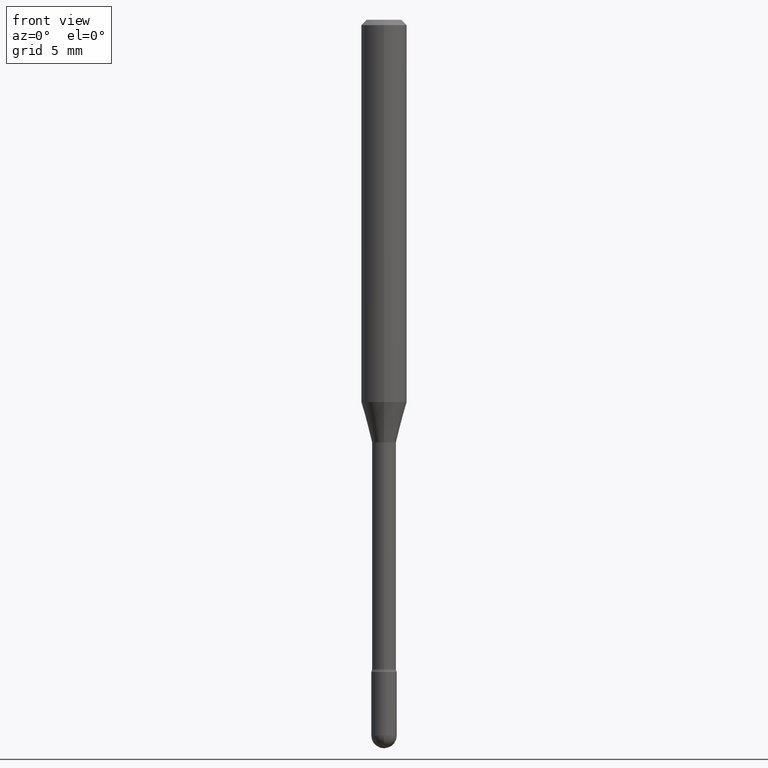
[diagram: clean part render]
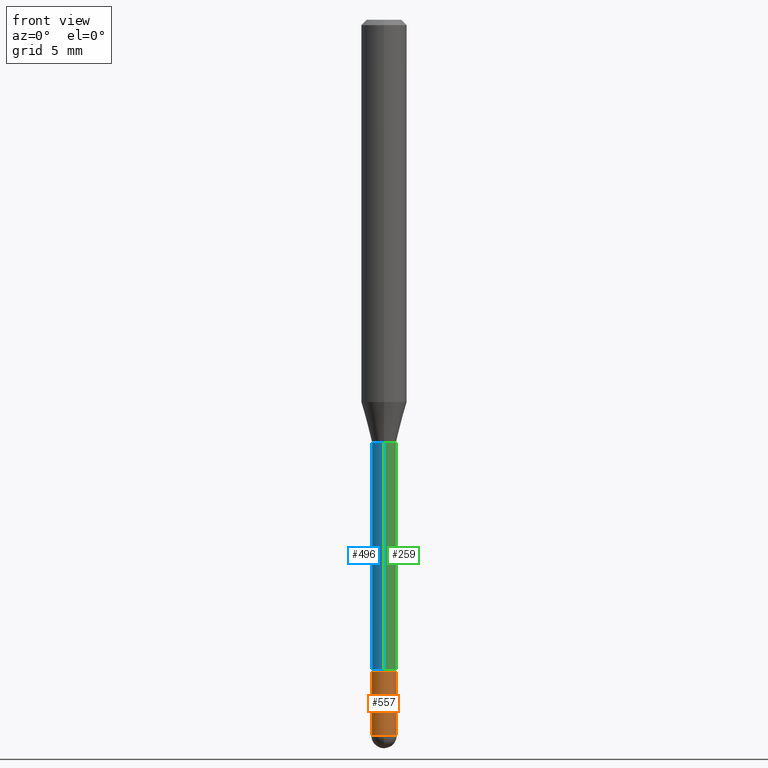
[diagram: same view with three faces highlighted in distinct colors, each labeled with its STEP entity id]
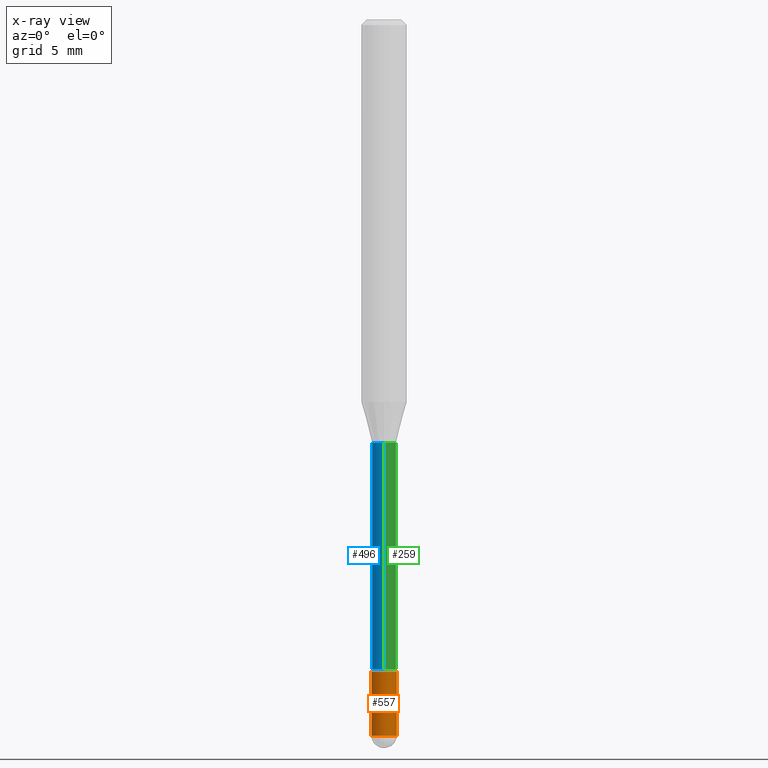
[diagram: x-ray of the same camera — body ghosted, the three highlighted faces saturated]
A machine part, front view with three faces highlighted in distinct colors.
The next image is the same camera in x-ray (body ghosted, the three faces saturated) — at least one of them is partly hidden behind the body in this view.
Their STEP definitions:

[orange] entity #557 — the highlighted cylindrical surface (edge-blend (fillet) strip) has radius 0.889 mm, axis along (-0, 0, 1).
#1 = CARTESIAN_POINT ( 'NONE',  ( -0.03500000000000000333, 2.486899575160350887E-16, -1.721627281589217108E-30 ) ) ;
#3 = VERTEX_POINT ( 'NONE', #83 ) ;
#15 = ORIENTED_EDGE ( 'NONE', *, *, #220, .T. ) ;
#44 = CIRCLE ( 'NONE', #163, 0.03500000000000000333 ) ;
#45 = VERTEX_POINT ( 'NONE', #544 ) ;
#50 = FACE_OUTER_BOUND ( 'NONE', #179, .T. ) ;
#73 = CIRCLE ( 'NONE', #87, 0.03500000000000000333 ) ;
#83 = CARTESIAN_POINT ( 'NONE',  ( 0.03500000000000000333, -6.799659907397025402E-15, -1.964999999999999858 ) ) ;
#87 = AXIS2_PLACEMENT_3D ( 'NONE', #371, #140, #326 ) ;
#103 = DIRECTION ( 'NONE',  ( -2.445468806185136597E-29, 3.491481338843145583E-15, 1.000000000000000000 ) ) ;
#109 = EDGE_CURVE ( 'NONE', #187, #45, #497, .T. ) ;
#114 = CARTESIAN_POINT ( 'NONE',  ( 4.377389163071394665E-29, -6.249751596529231267E-15, -1.790000000000000036 ) ) ;
#119 = CARTESIAN_POINT ( 'NONE',  ( -0.03500000000000000333, -6.306566256161970939E-15, -1.964999999999999858 ) ) ;
#140 = DIRECTION ( 'NONE',  ( -2.445468806185136597E-29, 3.491481338843145583E-15, 1.000000000000000000 ) ) ;
#161 = EDGE_CURVE ( 'NONE', #45, #3, #73, .T. ) ;
#163 = AXIS2_PLACEMENT_3D ( 'NONE', #114, #302, #479 ) ;
#178 = DIRECTION ( 'NONE',  ( -2.445468806185136877E-29, 3.491481338843145188E-15, 1.000000000000000000 ) ) ;
#179 = EDGE_LOOP ( 'NONE', ( #399, #483, #352, #15, #183 ) ) ;
#183 = ORIENTED_EDGE ( 'NONE', *, *, #413, .F. ) ;
#187 = VERTEX_POINT ( 'NONE', #119 ) ;
#213 = VERTEX_POINT ( 'NONE', #249 ) ;
#220 = EDGE_CURVE ( 'NONE', #3, #404, #301, .T. ) ;
#249 = CARTESIAN_POINT ( 'NONE',  ( -0.03500000000000000333, -6.306566256161970939E-15, -1.790000000000000036 ) ) ;
#273 = LINE ( 'NONE', #1, #501 ) ;
#284 = CARTESIAN_POINT ( 'NONE',  ( 4.805346204153793345E-29, -6.860760830826780393E-15, -1.964999999999999858 ) ) ;
#296 = CARTESIAN_POINT ( 'NONE',  ( 0.03500000000000000333, -2.444036937190193250E-16, 1.706661871528577808E-30 ) ) ;
#301 = LINE ( 'NONE', #296, #533 ) ;
#302 = DIRECTION ( 'NONE',  ( -2.445468806185136597E-29, 3.491481338843145583E-15, 1.000000000000000000 ) ) ;
#306 = AXIS2_PLACEMENT_3D ( 'NONE', #396, #543, #333 ) ;
#313 = AXIS2_PLACEMENT_3D ( 'NONE', #284, #103, #383 ) ;
#326 = DIRECTION ( 'NONE',  ( 1.000000000000000000, -6.982962677686276966E-15, 0.000000000000000000 ) ) ;
#333 = DIRECTION ( 'NONE',  ( 1.000000000000000000, -6.982962677686265922E-15, 4.876176775795936353E-29 ) ) ;
#340 = DIRECTION ( 'NONE',  ( -2.445468806185136877E-29, 3.491481338843145188E-15, 1.000000000000000000 ) ) ;
#352 = ORIENTED_EDGE ( 'NONE', *, *, #161, .T. ) ;
#367 = CYLINDRICAL_SURFACE ( 'NONE', #306, 0.03500000000000000333 ) ;
#371 = CARTESIAN_POINT ( 'NONE',  ( 4.805346204153793345E-29, -6.860760830826780393E-15, -1.964999999999999858 ) ) ;
#383 = DIRECTION ( 'NONE',  ( 1.000000000000000000, -6.982962677686276966E-15, 0.000000000000000000 ) ) ;
#396 = CARTESIAN_POINT ( 'NONE',  ( 0.000000000000000000, 0.000000000000000000, 0.000000000000000000 ) ) ;
#399 = ORIENTED_EDGE ( 'NONE', *, *, #445, .F. ) ;
#404 = VERTEX_POINT ( 'NONE', #513 ) ;
#413 = EDGE_CURVE ( 'NONE', #213, #404, #44, .T. ) ;
#445 = EDGE_CURVE ( 'NONE', #187, #213, #273, .T. ) ;
#479 = DIRECTION ( 'NONE',  ( 1.000000000000000000, -6.982962677686276966E-15, 0.000000000000000000 ) ) ;
#483 = ORIENTED_EDGE ( 'NONE', *, *, #109, .T. ) ;
#497 = CIRCLE ( 'NONE', #313, 0.03500000000000000333 ) ;
#501 = VECTOR ( 'NONE', #178, 39.37007874015748143 ) ;
#513 = CARTESIAN_POINT ( 'NONE',  ( 0.03500000000000000333, -6.494155290248250444E-15, -1.790000000000000036 ) ) ;
#533 = VECTOR ( 'NONE', #340, 39.37007874015748143 ) ;
#543 = DIRECTION ( 'NONE',  ( -2.445468806185136597E-29, 3.491481338843145583E-15, 1.000000000000000000 ) ) ;
#544 = CARTESIAN_POINT ( 'NONE',  ( -2.486899575159870668E-16, -0.03500000000000687284, -1.964999999999999858 ) ) ;
#557 = ADVANCED_FACE ( 'NONE', ( #50 ), #367, .T. ) ;

[blue] entity #496 — the highlighted cylindrical surface (edge-blend (fillet) strip) has radius 0.8357 mm, axis along (-0, 0, 1).
#6 = VERTEX_POINT ( 'NONE', #541 ) ;
#12 = EDGE_LOOP ( 'NONE', ( #221, #311, #223, #446 ) ) ;
#47 = DIRECTION ( 'NONE',  ( -6.982962677686266711E-15, -1.000000000000000000, 3.491439984779463870E-15 ) ) ;
#61 = EDGE_CURVE ( 'NONE', #226, #6, #279, .T. ) ;
#81 = AXIS2_PLACEMENT_3D ( 'NONE', #307, #485, #488 ) ;
#97 = EDGE_CURVE ( 'NONE', #324, #226, #312, .T. ) ;
#106 = CARTESIAN_POINT ( 'NONE',  ( 4.358722010466005313E-29, -6.222952657899001696E-15, -1.782345589506696193 ) ) ;
#130 = DIRECTION ( 'NONE',  ( -2.445497683573463397E-29, 3.491439984779462686E-15, 1.000000000000000000 ) ) ;
#160 = AXIS2_PLACEMENT_3D ( 'NONE', #106, #416, #421 ) ;
#197 = EDGE_CURVE ( 'NONE', #324, #275, #390, .T. ) ;
#205 = CARTESIAN_POINT ( 'NONE',  ( 2.337685600650730998E-16, 0.03290000000000002645, 3.632050233920016564E-16 ) ) ;
#206 = CARTESIAN_POINT ( 'NONE',  ( -2.297394720958349133E-16, -0.03290000000000627145, -1.782345589506696193 ) ) ;
#221 = ORIENTED_EDGE ( 'NONE', *, *, #197, .F. ) ;
#223 = ORIENTED_EDGE ( 'NONE', *, *, #61, .T. ) ;
#226 = VERTEX_POINT ( 'NONE', #206 ) ;
#252 = DIRECTION ( 'NONE',  ( -2.445497683573463397E-29, 3.491439984779462686E-15, 1.000000000000000000 ) ) ;
#255 = VECTOR ( 'NONE', #252, 39.37007874015748143 ) ;
#275 = VERTEX_POINT ( 'NONE', #562 ) ;
#278 = CARTESIAN_POINT ( 'NONE',  ( -2.297394720958783499E-16, -0.03290000000000002645, 5.929417743904905687E-16 ) ) ;
#279 = LINE ( 'NONE', #278, #534 ) ;
#307 = CARTESIAN_POINT ( 'NONE',  ( 2.841606651113517657E-29, -4.056965234256767798E-15, -1.161974787463810888 ) ) ;
#310 = CARTESIAN_POINT ( 'NONE',  ( -1.169113584055446105E-44, 1.669184350826100908E-30, 4.780733988912460139E-16 ) ) ;
#311 = ORIENTED_EDGE ( 'NONE', *, *, #97, .T. ) ;
#312 = CIRCLE ( 'NONE', #160, 0.03290000000000004726 ) ;
#324 = VERTEX_POINT ( 'NONE', #448 ) ;
#390 = LINE ( 'NONE', #205, #255 ) ;
#403 = FACE_OUTER_BOUND ( 'NONE', #12, .T. ) ;
#416 = DIRECTION ( 'NONE',  ( -2.445497683573463397E-29, 3.491439984779462686E-15, 1.000000000000000000 ) ) ;
#420 = AXIS2_PLACEMENT_3D ( 'NONE', #310, #130, #47 ) ;
#421 = DIRECTION ( 'NONE',  ( -6.982962677686266711E-15, -1.000000000000000000, 0.000000000000000000 ) ) ;
#428 = CIRCLE ( 'NONE', #81, 0.03289999999999999869 ) ;
#446 = ORIENTED_EDGE ( 'NONE', *, *, #520, .F. ) ;
#448 = CARTESIAN_POINT ( 'NONE',  ( 2.412292587905979007E-16, 0.03289999999999382307, -1.782345589506696193 ) ) ;
#485 = DIRECTION ( 'NONE',  ( -2.445497683573463397E-29, 3.491439984779462686E-15, 1.000000000000000000 ) ) ;
#488 = DIRECTION ( 'NONE',  ( -6.982962677686266711E-15, -1.000000000000000000, 4.151744671222284594E-15 ) ) ;
#496 = ADVANCED_FACE ( 'NONE', ( #403 ), #523, .T. ) ;
#520 = EDGE_CURVE ( 'NONE', #275, #6, #428, .T. ) ;
#523 = CYLINDRICAL_SURFACE ( 'NONE', #420, 0.03290000000000002645 ) ;
#534 = VECTOR ( 'NONE', #547, 39.37007874015748143 ) ;
#541 = CARTESIAN_POINT ( 'NONE',  ( -2.297394720958497537E-16, -0.03290000000000405794, -1.161974787463810888 ) ) ;
#547 = DIRECTION ( 'NONE',  ( -2.445497683573463397E-29, 3.491439984779462686E-15, 1.000000000000000000 ) ) ;
#562 = CARTESIAN_POINT ( 'NONE',  ( 2.337685600651167829E-16, 0.03289999999999595331, -1.161974787463811110 ) ) ;

[green] entity #259 — the highlighted cylindrical surface (edge-blend (fillet) strip) has radius 0.8357 mm, axis along (-0, 0, 1).
#6 = VERTEX_POINT ( 'NONE', #541 ) ;
#23 = EDGE_CURVE ( 'NONE', #226, #324, #146, .T. ) ;
#28 = DIRECTION ( 'NONE',  ( -6.982962677686266711E-15, -1.000000000000000000, 0.000000000000000000 ) ) ;
#61 = EDGE_CURVE ( 'NONE', #226, #6, #279, .T. ) ;
#146 = CIRCLE ( 'NONE', #443, 0.03290000000000004726 ) ;
#157 = DIRECTION ( 'NONE',  ( -6.982962677686266711E-15, -1.000000000000000000, 4.151744671222284594E-15 ) ) ;
#159 = CYLINDRICAL_SURFACE ( 'NONE', #216, 0.03290000000000002645 ) ;
#166 = CARTESIAN_POINT ( 'NONE',  ( -1.169113584055446105E-44, 1.669184350826100908E-30, 4.780733988912460139E-16 ) ) ;
#168 = FACE_OUTER_BOUND ( 'NONE', #193, .T. ) ;
#193 = EDGE_LOOP ( 'NONE', ( #539, #407, #265, #261 ) ) ;
#197 = EDGE_CURVE ( 'NONE', #324, #275, #390, .T. ) ;
#205 = CARTESIAN_POINT ( 'NONE',  ( 2.337685600650730998E-16, 0.03290000000000002645, 3.632050233920016564E-16 ) ) ;
#206 = CARTESIAN_POINT ( 'NONE',  ( -2.297394720958349133E-16, -0.03290000000000627145, -1.782345589506696193 ) ) ;
#207 = EDGE_CURVE ( 'NONE', #6, #275, #453, .T. ) ;
#216 = AXIS2_PLACEMENT_3D ( 'NONE', #166, #345, #429 ) ;
#226 = VERTEX_POINT ( 'NONE', #206 ) ;
#251 = CARTESIAN_POINT ( 'NONE',  ( 2.841606651113517657E-29, -4.056965234256767798E-15, -1.161974787463810888 ) ) ;
#252 = DIRECTION ( 'NONE',  ( -2.445497683573463397E-29, 3.491439984779462686E-15, 1.000000000000000000 ) ) ;
#255 = VECTOR ( 'NONE', #252, 39.37007874015748143 ) ;
#259 = ADVANCED_FACE ( 'NONE', ( #168 ), #159, .T. ) ;
#261 = ORIENTED_EDGE ( 'NONE', *, *, #61, .F. ) ;
#265 = ORIENTED_EDGE ( 'NONE', *, *, #207, .F. ) ;
#275 = VERTEX_POINT ( 'NONE', #562 ) ;
#278 = CARTESIAN_POINT ( 'NONE',  ( -2.297394720958783499E-16, -0.03290000000000002645, 5.929417743904905687E-16 ) ) ;
#279 = LINE ( 'NONE', #278, #534 ) ;
#324 = VERTEX_POINT ( 'NONE', #448 ) ;
#334 = DIRECTION ( 'NONE',  ( -2.445497683573463397E-29, 3.491439984779462686E-15, 1.000000000000000000 ) ) ;
#345 = DIRECTION ( 'NONE',  ( -2.445497683573463397E-29, 3.491439984779462686E-15, 1.000000000000000000 ) ) ;
#390 = LINE ( 'NONE', #205, #255 ) ;
#407 = ORIENTED_EDGE ( 'NONE', *, *, #197, .T. ) ;
#427 = DIRECTION ( 'NONE',  ( -2.445497683573463397E-29, 3.491439984779462686E-15, 1.000000000000000000 ) ) ;
#429 = DIRECTION ( 'NONE',  ( -6.982962677686266711E-15, -1.000000000000000000, 3.491439984779463870E-15 ) ) ;
#443 = AXIS2_PLACEMENT_3D ( 'NONE', #500, #334, #28 ) ;
#448 = CARTESIAN_POINT ( 'NONE',  ( 2.412292587905979007E-16, 0.03289999999999382307, -1.782345589506696193 ) ) ;
#453 = CIRCLE ( 'NONE', #545, 0.03289999999999999869 ) ;
#500 = CARTESIAN_POINT ( 'NONE',  ( 4.358722010466005313E-29, -6.222952657899001696E-15, -1.782345589506696193 ) ) ;
#534 = VECTOR ( 'NONE', #547, 39.37007874015748143 ) ;
#539 = ORIENTED_EDGE ( 'NONE', *, *, #23, .T. ) ;
#541 = CARTESIAN_POINT ( 'NONE',  ( -2.297394720958497537E-16, -0.03290000000000405794, -1.161974787463810888 ) ) ;
#545 = AXIS2_PLACEMENT_3D ( 'NONE', #251, #427, #157 ) ;
#547 = DIRECTION ( 'NONE',  ( -2.445497683573463397E-29, 3.491439984779462686E-15, 1.000000000000000000 ) ) ;
#562 = CARTESIAN_POINT ( 'NONE',  ( 2.337685600651167829E-16, 0.03289999999999595331, -1.161974787463811110 ) ) ;